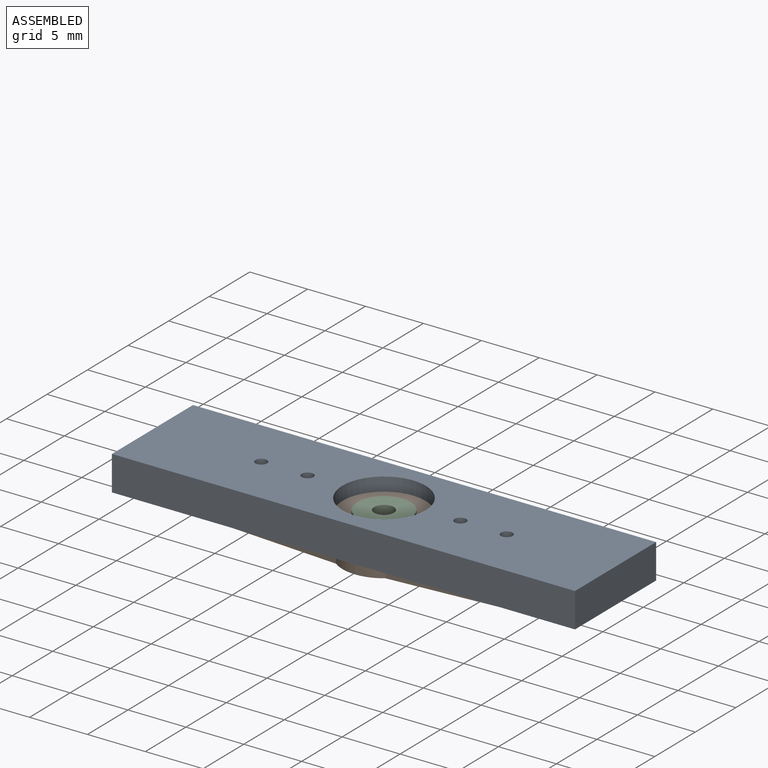
[diagram: assembled view]
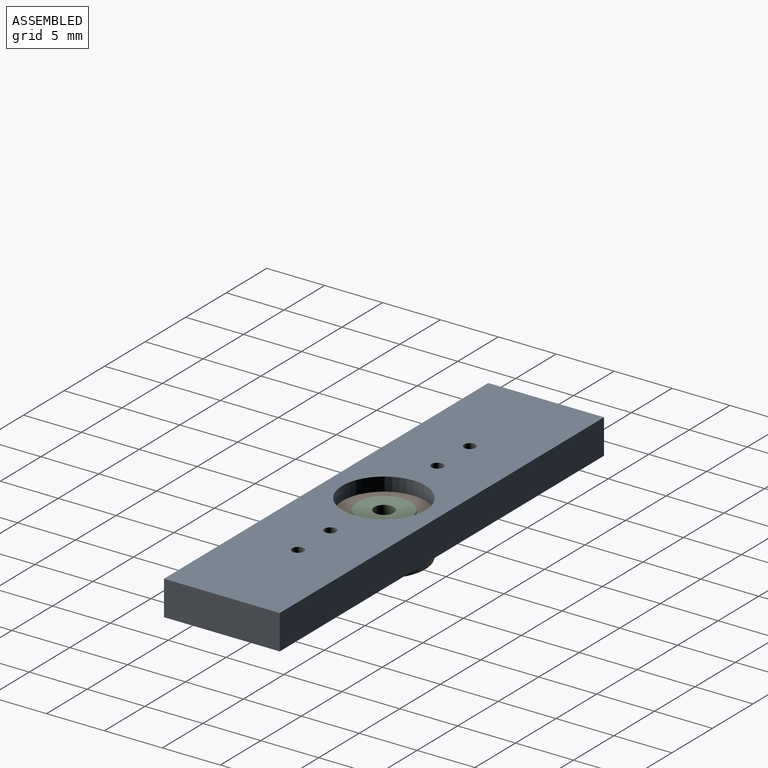
[diagram: assembled view, second angle]
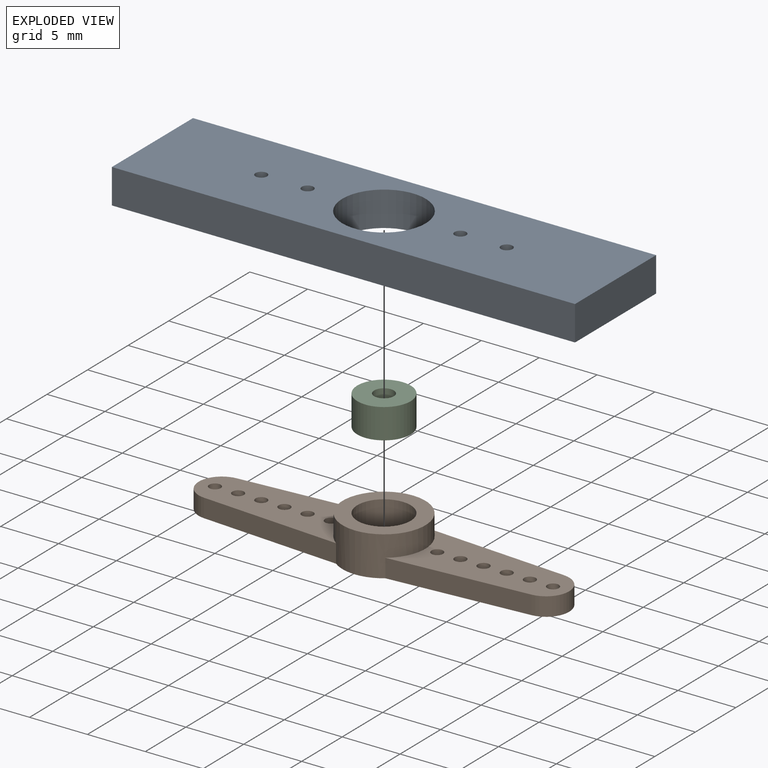
[diagram: exploded view]
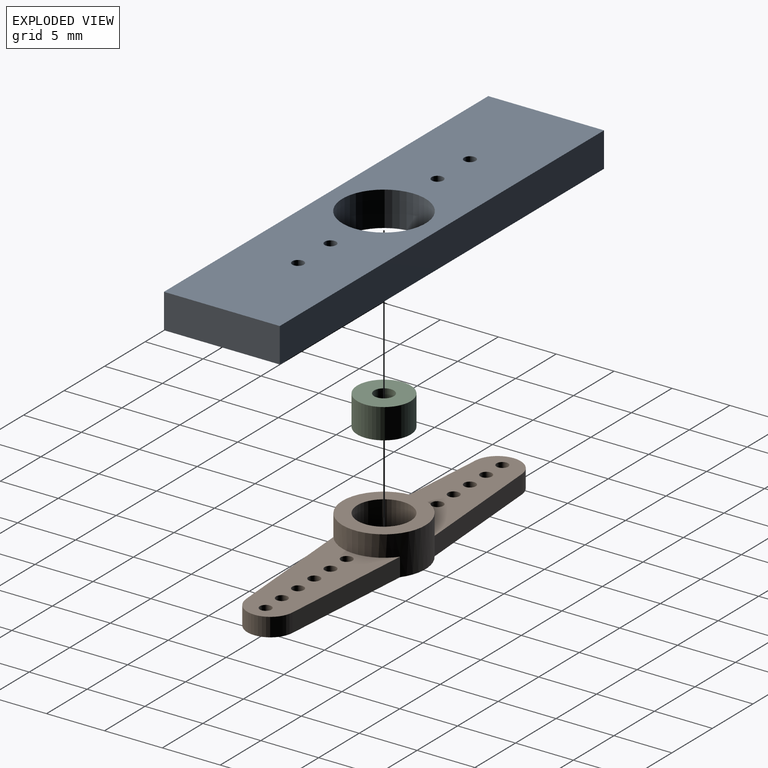
[diagram: exploded view, second angle]
ASSEMBLY  parts=3 mates=2
PART A: 11 faces, bbox 40x10x3 mm
  f0: plane 40x3mm, normal (0,-1,0), area 120mm2, adj f1,f3,f9,f10
  f1: plane 10x3mm, normal (1,0,0), area 30mm2, adj f0,f2,f9,f10
  f2: plane 40x3mm, normal (0,1,0), area 120mm2, adj f1,f3,f9,f10
  f3: plane 10x3mm, normal (-1,0,0), area 30mm2, adj f0,f2,f9,f10
  f4: cylinder r=3.6mm len=7.2mm, axis (0,0,-1), area 67.9mm2, adj f9,f10
  f5: cylinder r=0.5mm len=3mm, axis (0,0,-1), area 9.4mm2, adj f9,f10
  f6: cylinder r=0.5mm len=3mm, axis (0,0,-1), area 9.4mm2, adj f9,f10
  f7: cylinder r=0.5mm len=3mm, axis (0,0,-1), area 9.4mm2, adj f9,f10
  f8: cylinder r=0.5mm len=3mm, axis (0,0,-1), area 9.4mm2, adj f9,f10
  f9: plane 40x10mm, normal (0,0,1), area 356.1mm2, adj f0,f1,f2,f3,f4,f5,f6,f7
  f10: plane 40x10mm, normal (0,0,-1), area 356.1mm2, adj f0,f1,f2,f3,f4,f5,f6,f7
PART B: 28 faces, bbox 32x3.4x7.2 mm
  f0: cylinder r=0.5mm len=1.6mm, axis (0,-1,0), area 5mm2, adj f9,f24
  f1: cylinder r=0.5mm len=1.6mm, axis (0,-1,0), area 5mm2, adj f9,f24
  f2: cylinder r=0.5mm len=1.6mm, axis (0,-1,0), area 5mm2, adj f9,f24
  f3: cylinder r=0.5mm len=1.6mm, axis (0,-1,0), area 5mm2, adj f9,f24
  f4: cylinder r=0.5mm len=1.6mm, axis (0,-1,0), area 5mm2, adj f9,f24
  f5: cylinder r=0.5mm len=1.6mm, axis (0,-1,0), area 5mm2, adj f9,f24
  f6: cylinder r=2mm len=3.99mm, axis (0,1,0), area 9.6mm2, adj f7,f8,f9,f24
  f7: plane 12.01x1.6mm, normal (-0.07,0,1), area 19.3mm2, adj f6,f9,f24,f26
  f8: plane 12.01x1.6mm, normal (-0.07,0,-1), area 19.3mm2, adj f6,f9,f24,f26
  f9: plane 13.87x5.75mm, normal (0,-1,0), area 53.7mm2, adj f0,f1,f2,f3,f4,f5,f6,f7
  f10: cylinder r=0.5mm len=1.6mm, axis (0,-1,0), area 5mm2, adj f19,f24
  f11: cylinder r=0.5mm len=1.6mm, axis (0,-1,0), area 5mm2, adj f19,f24
  f12: cylinder r=0.5mm len=1.6mm, axis (0,-1,0), area 5mm2, adj f19,f24
  f13: cylinder r=0.5mm len=1.6mm, axis (0,-1,0), area 5mm2, adj f19,f24
  f14: cylinder r=0.5mm len=1.6mm, axis (0,-1,0), area 5mm2, adj f19,f24
  f15: cylinder r=0.5mm len=1.6mm, axis (0,-1,0), area 5mm2, adj f19,f24
  f16: cylinder r=2mm len=3.99mm, axis (0,1,0), area 9.6mm2, adj f17,f18,f19,f24
  f17: plane 12.01x1.6mm, normal (0.07,0,-1), area 19.3mm2, adj f16,f19,f24,f26
  f18: plane 12.01x1.6mm, normal (0.07,0,1), area 19.3mm2, adj f16,f19,f24,f26
  f19: plane 13.87x5.75mm, normal (0,-1,0), area 53.7mm2, adj f10,f11,f12,f13,f14,f15,f16,f17
  f20: cylinder r=2.43mm len=4.85mm, axis (0,-1,0), area 9.4mm2, adj f21,f24
  f21: plane 4.85x4.85mm, normal (0,1,0), area 16.2mm2, adj f20,f23
  f22: plane 4.6x4.6mm, normal (0,-1,0), area 14.3mm2, adj f23,f25
  f23: cylinder r=0.85mm len=1.7mm, axis (0,1,0), area 2.4mm2, adj f21,f22
  f24: plane 32x7.16mm, normal (0,1,0), area 129.1mm2, adj f0,f1,f2,f3,f4,f5,f6,f7
  f25: cylinder r=2.3mm len=4.6mm, axis (0,-1,0), area 34.1mm2, adj f22,f27
  f26: cylinder r=3.58mm len=7.16mm, axis (0,1,0), area 55.8mm2, adj f7,f8,f9,f17,f18,f19,f24,f27
  f27: plane 7.16x7.16mm, normal (0,-1,0), area 23.6mm2, adj f25,f26
PART C: 4 faces, bbox 4.6x2.6x4.6 mm
  f0: cylinder r=0.85mm len=2.6mm, axis (0,-1,0), area 13.9mm2, adj f2,f3
  f1: cylinder r=2.3mm len=4.6mm, axis (0,-1,0), area 37.6mm2, adj f2,f3
  f2: plane 4.6x4.6mm, normal (0,1,0), area 14.3mm2, adj f0,f1
  f3: plane 4.6x4.6mm, normal (0,-1,0), area 14.3mm2, adj f0,f1
PLACE A t=(5.91,5.28,2.8)mm
PLACE B rot(axis=(-1,0,0),90deg) t=(0.01,11.18,13.97)mm
PLACE C rot(axis=(1,0,0),90deg) t=(0.01,-0.62,-9.83)mm
MATE revolute B.f15 <-> A.f7  axis (0,0,1) through (12.51,5.28,1.3)mm
MATE fastened C.f1 <-> B.f26  axis (0,0,-1) through (5.91,5.28,0.77)mm
